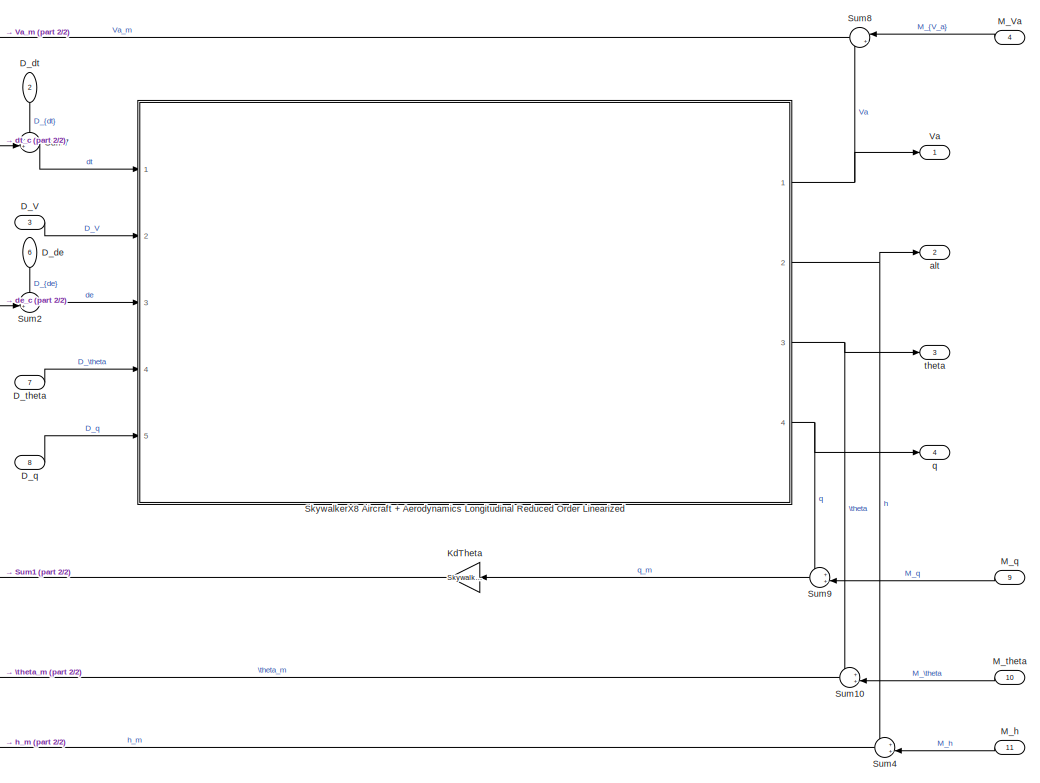
[diagram: root canvas - part 1/2, right side, full height]
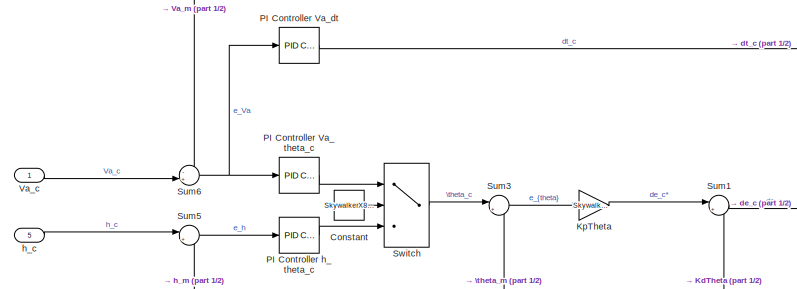
[diagram: root canvas - part 2/2, top left region]
MODEL slx_2fd11333ee48
KIND model
CONFIG AbsTol = auto
CONFIG EnableMultiTasking = off
CONFIG FixedStep = 0.02
CONFIG MaxStep = auto
CONFIG MinStep = auto
CONFIG RelTol = 1e-3
CONFIG SampleTimeConstraint = Unconstrained
CONFIG Solver = FixedStepAuto
CONFIG SolverName = FixedStepAuto
CONFIG StartTime = 0.0
CONFIG StopTime = 10.0
BLOCK [Constant] Constant
  Value = SkywalkerX8.Control.Longitudinal.AlgebraicDesign.ReducedOrderModel.Controller.ThetaCSelector
BLOCK [Inport] D_V
  IconDisplay = Port number
  Port = 3
BLOCK [Inport] D_de
  IconDisplay = Port number
  Port = 6
BLOCK [Inport] D_dt
  IconDisplay = Port number
  Port = 2
BLOCK [Inport] D_q
  IconDisplay = Port number
  Port = 8
BLOCK [Inport] D_theta
  IconDisplay = Port number
  Port = 7
BLOCK [Gain] KdTheta
  Gain = SkywalkerX8.Control.Longitudinal.AlgebraicDesign.ReducedOrderModel.Controller.KdTheta
  OutDataTypeStr = Inherit: Inherit via internal rule
  ParamDataTypeStr = Inherit: Inherit via internal rule
  SaturateOnIntegerOverflow = off
BLOCK [Gain] KpTheta
  Gain = SkywalkerX8.Control.Longitudinal.AlgebraicDesign.ReducedOrderModel.Controller.KdTheta
  OutDataTypeStr = Inherit: Inherit via internal rule
  ParamDataTypeStr = Inherit: Inherit via internal rule
  SaturateOnIntegerOverflow = off
BLOCK [Inport] M_Va
  IconDisplay = Port number
  Port = 4
BLOCK [Inport] M_h
  IconDisplay = Port number
  Port = 11
BLOCK [Inport] M_q
  IconDisplay = Port number
  Port = 9
BLOCK [Inport] M_theta
  IconDisplay = Port number
  Port = 10
BLOCK [Reference] PI Controller Va_dt  REF=simulink/Continuous/PID Controller
  Ports = [1, 1]
  SourceBlock = simulink/Continuous/PID Controller
  SourceProductBaseCode = SL
  SourceProductName = Simulink
  SourceType = PID 1dof
BLOCK [Reference] PI Controller Va_theta_c  REF=simulink/Continuous/PID Controller
  Ports = [1, 1]
  SourceBlock = simulink/Continuous/PID Controller
  SourceProductBaseCode = SL
  SourceProductName = Simulink
  SourceType = PID 1dof
BLOCK [Reference] PI Controller h_theta_c  REF=simulink/Continuous/PID Controller
  Ports = [1, 1]
  SourceBlock = simulink/Continuous/PID Controller
  SourceProductBaseCode = SL
  SourceProductName = Simulink
  SourceType = PID 1dof
BLOCK [ModelReference] SkywalkerX8 Aircraft + Aerodynamics Longitudinal Reduced Order Linearized
  ModelNameDialog = SkywalkerX8_Longitudinal_Linearized_ReducedOrder
  ModelReferenceVersion = 1.72
  Ports = [5, 4]
BLOCK [Sum] Sum1
  IconShape = round
  InputSameDT = off
  Inputs = |+-
  OutDataTypeStr = Inherit: Inherit via internal rule
  Ports = [2, 1]
  SaturateOnIntegerOverflow = off
BLOCK [Sum] Sum10
  IconShape = round
  InputSameDT = off
  Inputs = ++|
  OutDataTypeStr = Inherit: Inherit via internal rule
  Ports = [2, 1]
  SaturateOnIntegerOverflow = off
BLOCK [Sum] Sum2
  IconShape = round
  InputSameDT = off
  Inputs = ++|
  OutDataTypeStr = Inherit: Inherit via internal rule
  Ports = [2, 1]
  SaturateOnIntegerOverflow = off
BLOCK [Sum] Sum3
  IconShape = round
  InputSameDT = off
  Inputs = |+-
  OutDataTypeStr = Inherit: Inherit via internal rule
  Ports = [2, 1]
  SaturateOnIntegerOverflow = off
BLOCK [Sum] Sum4
  IconShape = round
  InputSameDT = off
  Inputs = ++|
  OutDataTypeStr = Inherit: Inherit via internal rule
  Ports = [2, 1]
  SaturateOnIntegerOverflow = off
BLOCK [Sum] Sum5
  IconShape = round
  InputSameDT = off
  Inputs = |+-
  OutDataTypeStr = Inherit: Inherit via internal rule
  Ports = [2, 1]
  SaturateOnIntegerOverflow = off
BLOCK [Sum] Sum6
  IconShape = round
  InputSameDT = off
  Inputs = -+|
  OutDataTypeStr = Inherit: Inherit via internal rule
  Ports = [2, 1]
  SaturateOnIntegerOverflow = off
BLOCK [Sum] Sum7
  IconShape = round
  InputSameDT = off
  Inputs = ++|
  OutDataTypeStr = Inherit: Inherit via internal rule
  Ports = [2, 1]
  SaturateOnIntegerOverflow = off
BLOCK [Sum] Sum8
  IconShape = round
  InputSameDT = off
  Inputs = |++
  OutDataTypeStr = Inherit: Inherit via internal rule
  Ports = [2, 1]
  SaturateOnIntegerOverflow = off
BLOCK [Sum] Sum9
  IconShape = round
  InputSameDT = off
  Inputs = ++|
  OutDataTypeStr = Inherit: Inherit via internal rule
  Ports = [2, 1]
  SaturateOnIntegerOverflow = off
BLOCK [Switch] Switch
  Criteria = u2 ~= 0
  InputSameDT = off
  SaturateOnIntegerOverflow = off
  Threshold = 1
BLOCK [Outport] Va
  IconDisplay = Port number
BLOCK [Inport] Va_c
  IconDisplay = Port number
BLOCK [Outport] alt
  IconDisplay = Port number
  Port = 2
BLOCK [Inport] h_c
  IconDisplay = Port number
  Port = 5
BLOCK [Outport] q
  IconDisplay = Port number
  Port = 4
BLOCK [Outport] theta
  IconDisplay = Port number
  Port = 3
LINE Constant:1 -> Switch:2
LINE D_V:1 -> SkywalkerX8 Aircraft + Aerodynamics Longitudinal Reduced Order Linearized:2
LINE D_de:1 -> Sum2:1
LINE D_dt:1 -> Sum7:1
LINE D_q:1 -> SkywalkerX8 Aircraft + Aerodynamics Longitudinal Reduced Order Linearized:5
LINE D_theta:1 -> SkywalkerX8 Aircraft + Aerodynamics Longitudinal Reduced Order Linearized:4
LINE KdTheta:1 -> Sum1:2
LINE KpTheta:1 -> Sum1:1
LINE M_Va:1 -> Sum8:1
LINE M_h:1 -> Sum4:2
LINE M_q:1 -> Sum9:2
LINE M_theta:1 -> Sum10:2
LINE PI Controller Va_dt:1 -> Sum7:2
LINE PI Controller Va_theta_c:1 -> Switch:1
LINE PI Controller h_theta_c:1 -> Switch:3
NET SkywalkerX8 Aircraft + Aerodynamics Longitudinal Reduced Order Linearized:1 -> Sum8:2, Va:1
NET SkywalkerX8 Aircraft + Aerodynamics Longitudinal Reduced Order Linearized:2 -> Sum4:1, alt:1
NET SkywalkerX8 Aircraft + Aerodynamics Longitudinal Reduced Order Linearized:3 -> Sum10:1, theta:1
NET SkywalkerX8 Aircraft + Aerodynamics Longitudinal Reduced Order Linearized:4 -> Sum9:1, q:1
LINE Sum10:1 -> Sum3:2
LINE Sum1:1 -> Sum2:2
LINE Sum2:1 -> SkywalkerX8 Aircraft + Aerodynamics Longitudinal Reduced Order Linearized:3
LINE Sum3:1 -> KpTheta:1
LINE Sum4:1 -> Sum5:2
LINE Sum5:1 -> PI Controller h_theta_c:1
NET Sum6:1 -> PI Controller Va_dt:1, PI Controller Va_theta_c:1
LINE Sum7:1 -> SkywalkerX8 Aircraft + Aerodynamics Longitudinal Reduced Order Linearized:1
LINE Sum8:1 -> Sum6:1
LINE Sum9:1 -> KdTheta:1
LINE Switch:1 -> Sum3:1
LINE Va_c:1 -> Sum6:2
LINE h_c:1 -> Sum5:1
note: NET lines group one-source signal fan-out (src -> all destinations, sorted); 1:1 wires keep LINE
